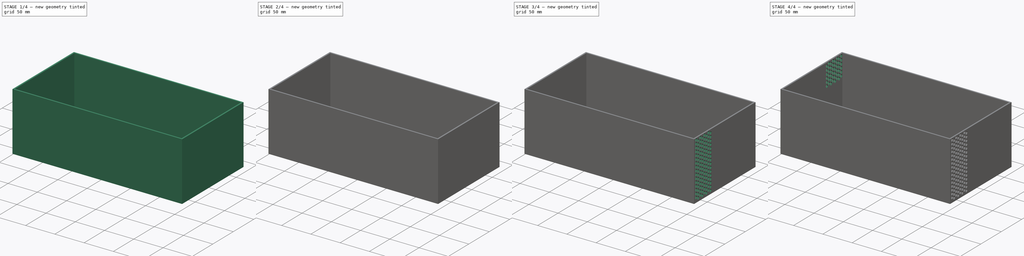
[diagram: build sequence overview — one tinted view per stage of 4, left to right]
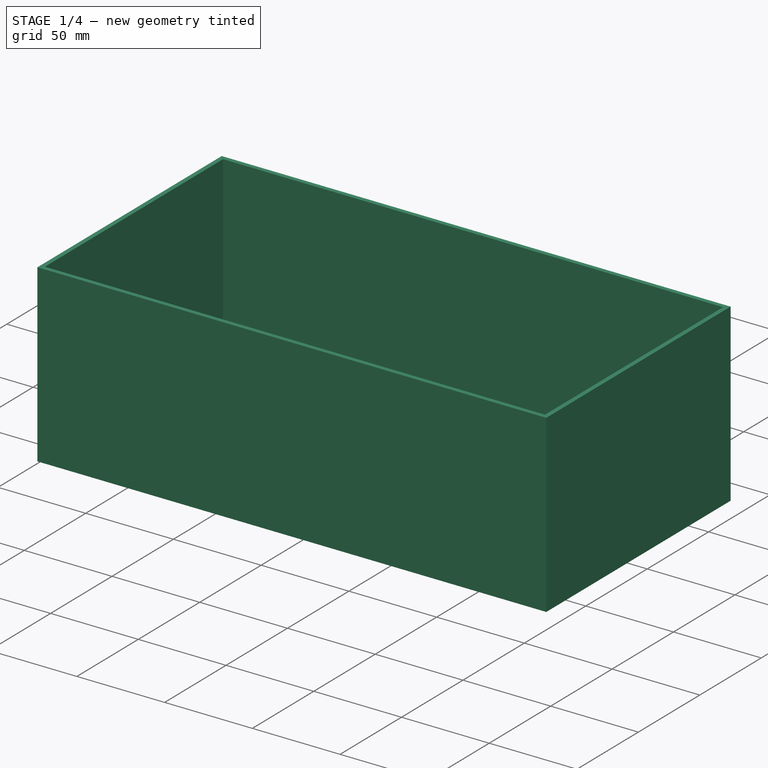
[diagram: stage 1 of 4 — iso view after this stage's code; geometry added in this stage tinted green]
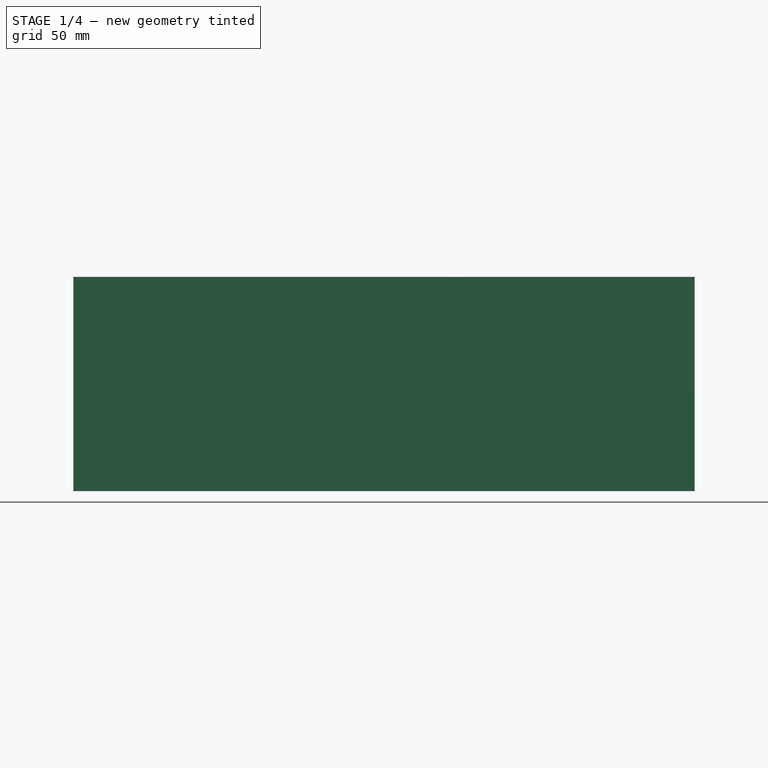
[diagram: stage 1 of 4 — front view after this stage's code; geometry added in this stage tinted green]
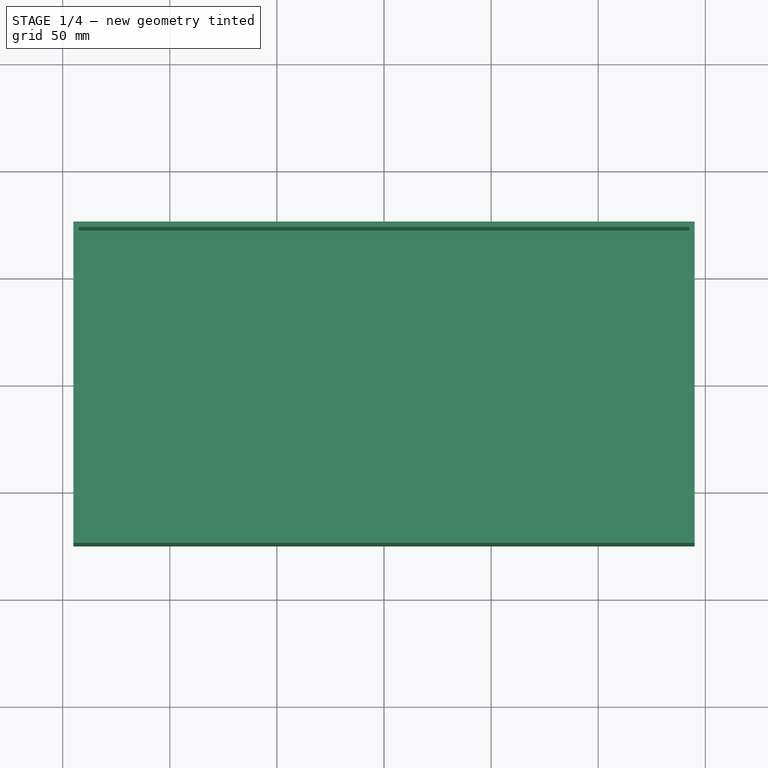
[diagram: stage 1 of 4 — top view after this stage's code; geometry added in this stage tinted green]
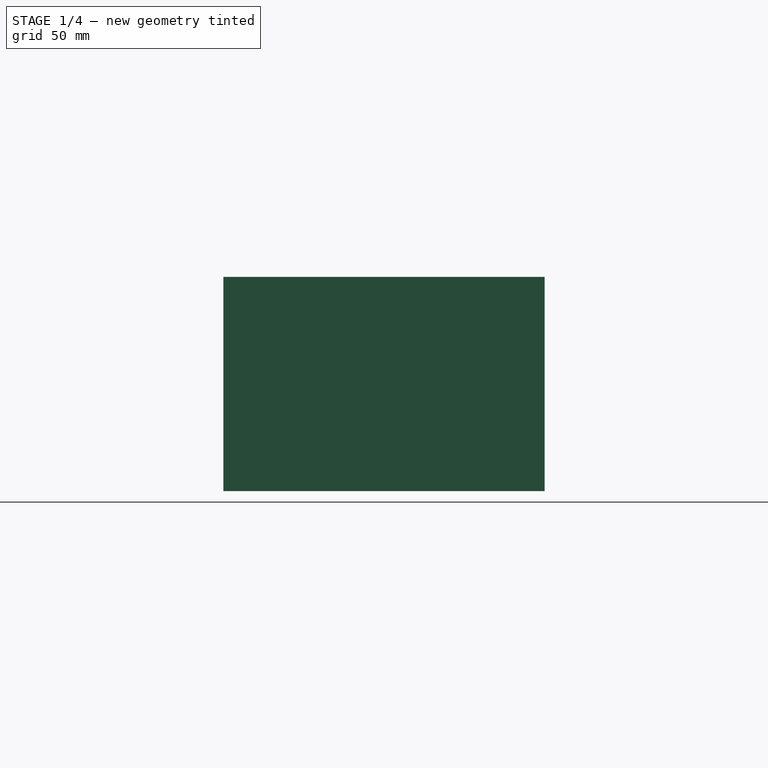
[diagram: stage 1 of 4 — right view after this stage's code; geometry added in this stage tinted green]
FCSTD DOCUMENT  (FreeCAD 0.16R6712 (Git))
Label: base
License: All rights reserved
LicenseURL: http://en.wikipedia.org/wiki/All_rights_reserved
objects: Sketcher::SketchObject×8, Part::Feature×5, PartDesign::Pocket×5, PartDesign::Pad×3, PartDesign::LinearPattern×2
note: 31 computed .brp shape members not serialized (recipe doc carries the construction recipe); baked Part::Feature solids carry a one-line shape summary decoded from their .brp

FEATURE [Sketcher::SketchObject] Sketch
  sketch-geometry (4):
    g0: LineSegment StartX=-145 StartY=75 StartZ=0 EndX=145 EndY=75 EndZ=0
    g1: LineSegment StartX=145 StartY=75 StartZ=0 EndX=145 EndY=-75 EndZ=0
    g2: LineSegment StartX=145 StartY=-75 StartZ=0 EndX=-145 EndY=-75 EndZ=0
    g3: LineSegment StartX=-145 StartY=-75 StartZ=0 EndX=-145 EndY=75 EndZ=0
  constraints (13):
    c: Coincident(g0,g1)
    c: Coincident(g1,g2)
    c: Coincident(g2,g3)
    c: Coincident(g3,g0)
    c: Horizontal(g2)
    c: Vertical(g1)
    c: Vertical(g3)
    c: Equal(g0,g2)
    c: Equal(g3,g1)
    c: DistanceY(g3,g3) = 150
    c: DistanceX(g0,g0) = 290
    c: Symmetric(g0,g0,g-2)
    c: Symmetric(g0,g2,g-1)
FEATURE [PartDesign::Pad] Pad
  Length = 2.5
  Length2 = 100
  Sketch = -> Sketch
  Type = 0
FEATURE [Sketcher::SketchObject] Sketch001
  Placement = pos=(0,0,2.5) rot=(0,0,1;0rad)
  Support = -> Pad [Face6]
  sketch-geometry (8):
    g0: LineSegment StartX=-145 StartY=75 StartZ=0 EndX=145 EndY=75 EndZ=0
    g1: LineSegment StartX=145 StartY=75 StartZ=0 EndX=145 EndY=-75 EndZ=0
    g2: LineSegment StartX=145 StartY=-75 StartZ=0 EndX=-145 EndY=-75 EndZ=0
    g3: LineSegment StartX=-145 StartY=-75 StartZ=0 EndX=-145 EndY=75 EndZ=0
    g4: LineSegment StartX=-142.5 StartY=72.5 StartZ=0 EndX=142.5 EndY=72.5 EndZ=0
    g5: LineSegment StartX=142.5 StartY=72.5 StartZ=0 EndX=142.5 EndY=-72.5 EndZ=0
    g6: LineSegment StartX=142.5 StartY=-72.5 StartZ=0 EndX=-142.5 EndY=-72.5 EndZ=0
    g7: LineSegment StartX=-142.5 StartY=-72.5 StartZ=0 EndX=-142.5 EndY=72.5 EndZ=0
  constraints (26):
    c: Coincident(g0,g1)
    c: Coincident(g1,g2)
    c: Coincident(g2,g3)
    c: Coincident(g3,g0)
    c: Horizontal(g2)
    c: Vertical(g1)
    c: Vertical(g3)
    c: Equal(g3,g1)
    c: Symmetric(g0,g0,g-2)
    c: Symmetric(g0,g2,g-1)
    c: DistanceX(g0,g0) = 290
    c: DistanceY(g1,g1) = 150
    c: Coincident(g4,g5)
    c: Coincident(g5,g6)
    c: Coincident(g6,g7)
    c: Coincident(g7,g4)
    c: Horizontal(g6)
    c: Vertical(g5)
    c: Vertical(g7)
    c: Equal(g4,g6)
    c: Equal(g7,g5)
    c: DistanceX(g4,g4) = 285
    c: Symmetric(g4,g4,g-2)
    c: Equal(g7,g5)
    c: DistanceY(g7,g7) = 145
    c: Symmetric(g4,g6,g-1)
FEATURE [PartDesign::Pad] Pad001
  Length = 97.5
  Length2 = 100
  Sketch = -> Sketch001
  Type = 0
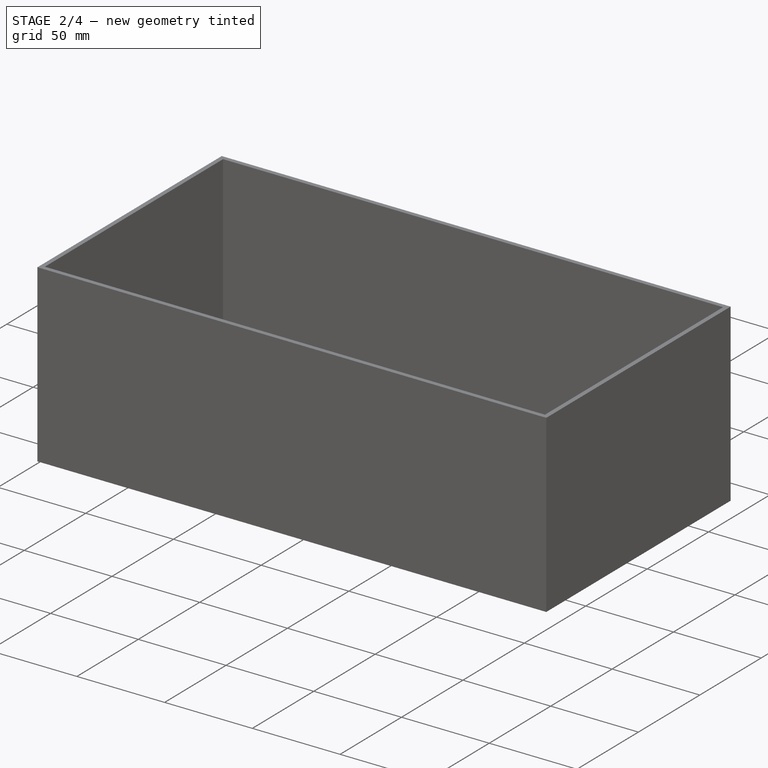
[diagram: stage 2 of 4 — iso view after this stage's code; geometry added in this stage tinted green]
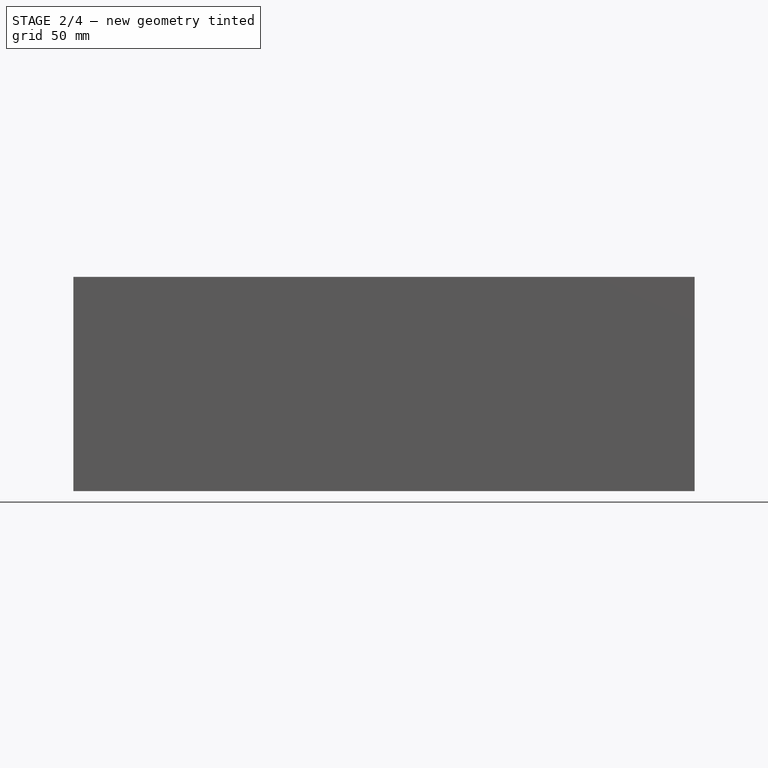
[diagram: stage 2 of 4 — front view after this stage's code; geometry added in this stage tinted green]
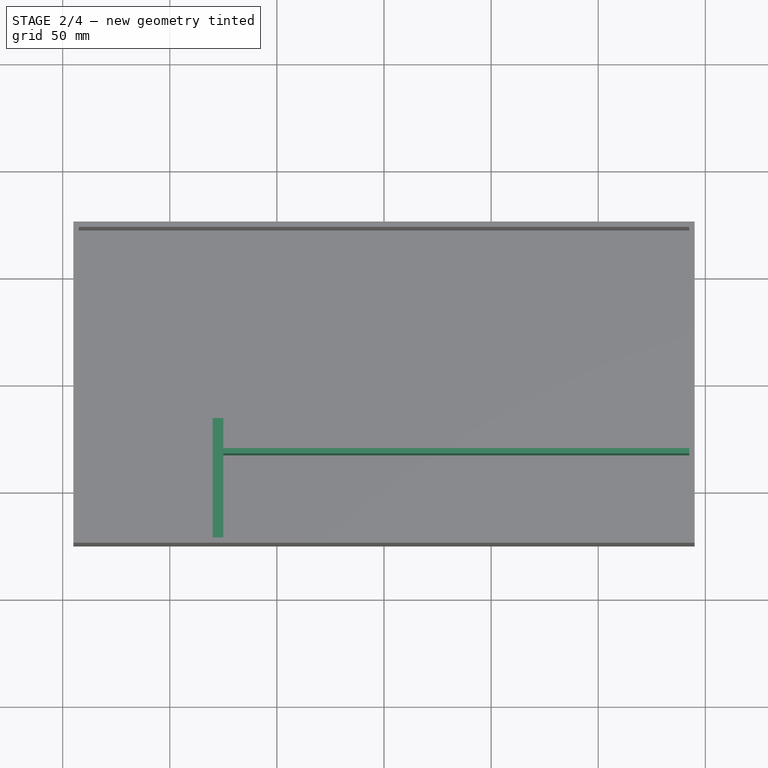
[diagram: stage 2 of 4 — top view after this stage's code; geometry added in this stage tinted green]
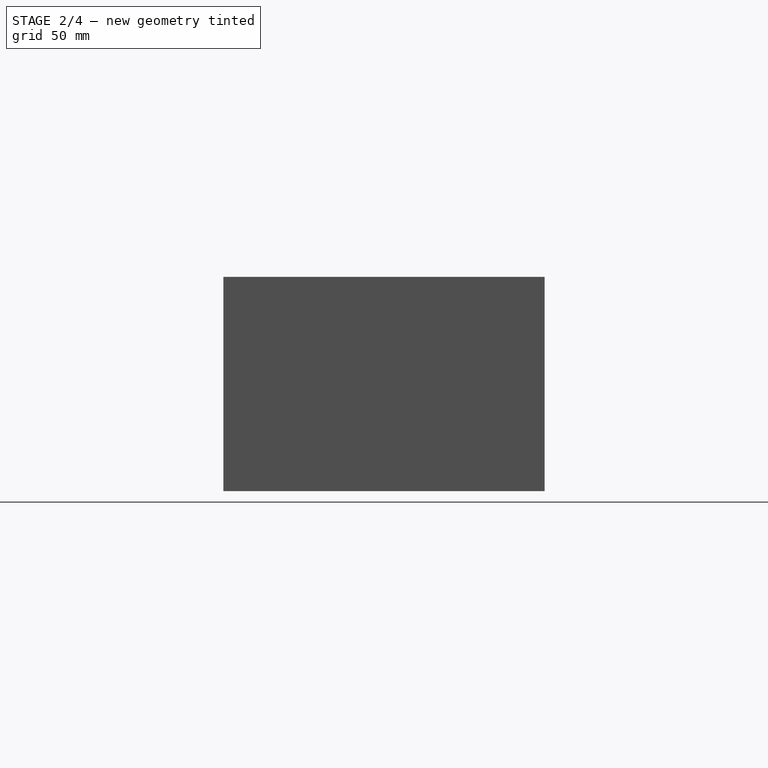
[diagram: stage 2 of 4 — right view after this stage's code; geometry added in this stage tinted green]
FEATURE [Sketcher::SketchObject] Sketch002
  Placement = pos=(0,0,2.5) rot=(0,0,1;0rad)
  Support = -> Pad001 [Face15]
  sketch-geometry (8):
    g0: LineSegment StartX=-75 StartY=-30 StartZ=0 EndX=142.5 EndY=-30 EndZ=0
    g1: LineSegment StartX=142.5 StartY=-30 StartZ=0 EndX=142.5 EndY=-32.5 EndZ=0
    g2: LineSegment StartX=142.5 StartY=-32.5 StartZ=0 EndX=-75 EndY=-32.5 EndZ=0
    g3: LineSegment StartX=-75 StartY=-32.5 StartZ=0 EndX=-75 EndY=-72.5 EndZ=0
    g4: LineSegment StartX=-75 StartY=-72.5 StartZ=0 EndX=-80 EndY=-72.5 EndZ=0
    g5: LineSegment StartX=-80 StartY=-16 StartZ=0 EndX=-75 EndY=-16 EndZ=0
    g6: LineSegment StartX=-75 StartY=-16 StartZ=0 EndX=-75 EndY=-30 EndZ=0
    g7: LineSegment StartX=-80 StartY=-16 StartZ=0 EndX=-80 EndY=-72.5 EndZ=0
  constraints (24):
    c: Horizontal(g0)
    c: Coincident(g1,g0)
    c: Coincident(g2,g1)
    c: Horizontal(g2)
    c: Coincident(g3,g2)
    c: Vertical(g3)
    c: Coincident(g4,g3)
    c: Vertical(g1)
    c: Horizontal(g4)
    c: DistanceY(g3,g3) = 40
    c: DistanceY(g1,g1) = 2.5
    c: DistanceX(g4,g4) = 5
    c: Horizontal(g5)
    c: Vertical(g6)
    c: Coincident(g0,g6)
    c: DistanceX(g2,g1) = 217.5
    c: Equal(g5,g4)
    c: DistanceX(g5,g-1) = 80
    c: Coincident(g7,g5)
    c: Coincident(g7,g4)
    c: Vertical(g7)
    c: Coincident(g6,g5)
    c: DistanceY(g5,g-1) = 16
    c: DistanceY(g0,g-1) = 30
FEATURE [PartDesign::Pad] Pad002
  Length = 55
  Length2 = 100
  Sketch = -> Sketch002
  Type = 0
FEATURE [Part::Feature] Part__Feature  label="opc"
  Placement = pos=(-127,-45,38) rot=(0.57735,0.57735,0.57735;2.0944rad)
  shape: bbox 60.5 x 75 x 63.5 mm, 57 faces (baked)
FEATURE [Sketcher::SketchObject] Sketch003
  Placement = pos=(-75,0,0) rot=(0.57735,0.57735,0.57735;2.0944rad)
  Support = -> Pad002 [Face20]
  sketch-geometry (1):
    g0: Circle CenterX=-45 CenterY=38 CenterZ=0 NormalX=0 NormalY=0 NormalZ=1 Radius=4.2
  constraints (3):
    c: Radius(g0) = 4.2
    c: DistanceX(g0,g-1) = 45
    c: DistanceY(g-1,g0) = 38
FEATURE [PartDesign::Pocket] Pocket
  Length = 5
  Sketch = -> Sketch003
  Type = 0
FEATURE [Sketcher::SketchObject] Sketch004
  Placement = pos=(-75,0,0) rot=(0.57735,0.57735,0.57735;2.0944rad)
  Support = -> Pocket [Face20]
  sketch-geometry (8):
    g0: Circle CenterX=-67 CenterY=52 CenterZ=0 NormalX=0 NormalY=0 NormalZ=1 Radius=1.5
    g1: Circle CenterX=-23 CenterY=52 CenterZ=0 NormalX=0 NormalY=0 NormalZ=1 Radius=1.5
    g2: Circle CenterX=-23 CenterY=27 CenterZ=0 NormalX=0 NormalY=0 NormalZ=1 Radius=1.5
    g3: Circle CenterX=-67 CenterY=27 CenterZ=0 NormalX=0 NormalY=0 NormalZ=1 Radius=1.5
    g4: LineSegment [constr] StartX=-67 StartY=52 StartZ=0 EndX=-23 EndY=52 EndZ=0
    g5: LineSegment [constr] StartX=-23 StartY=52 StartZ=0 EndX=-23 EndY=27 EndZ=0
    g6: LineSegment [constr] StartX=-67 StartY=27 StartZ=0 EndX=-67 EndY=52 EndZ=0
    g7: LineSegment [constr] StartX=-67 StartY=27 StartZ=0 EndX=-23 EndY=27 EndZ=0
  constraints (22):
    c: Equal(g0,g3)
    c: Equal(g3,g1)
    c: Equal(g1,g2)
    c: Coincident(g4,g0)
    c: Coincident(g4,g1)
    c: Horizontal(g4)
    c: Coincident(g5,g1)
    c: Coincident(g5,g2)
    c: Vertical(g5)
    c: Coincident(g6,g3)
    c: Coincident(g6,g0)
    c: Vertical(g6)
    c: Coincident(g7,g3)
    c: Horizontal(g7)
    c: Coincident(g7,g2)
    c: Equal(g6,g5)
    c: Equal(g7,g4)
    c: DistanceX(g7,g7) = 44
    c: DistanceY(g6,g6) = 25
    c: Radius(g0) = 1.5
    c: DistanceY(g-1,g2) = 27
    c: DistanceX(g2,g-1) = 23
FEATURE [PartDesign::Pocket] Pocket001
  Length = 5
  Sketch = -> Sketch004
  Type = 0
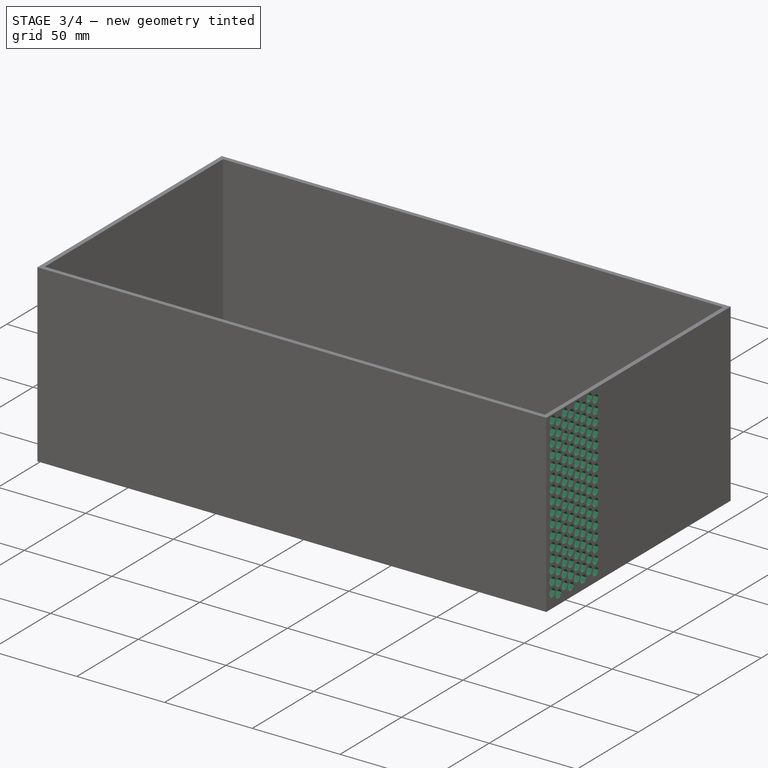
[diagram: stage 3 of 4 — iso view after this stage's code; geometry added in this stage tinted green]
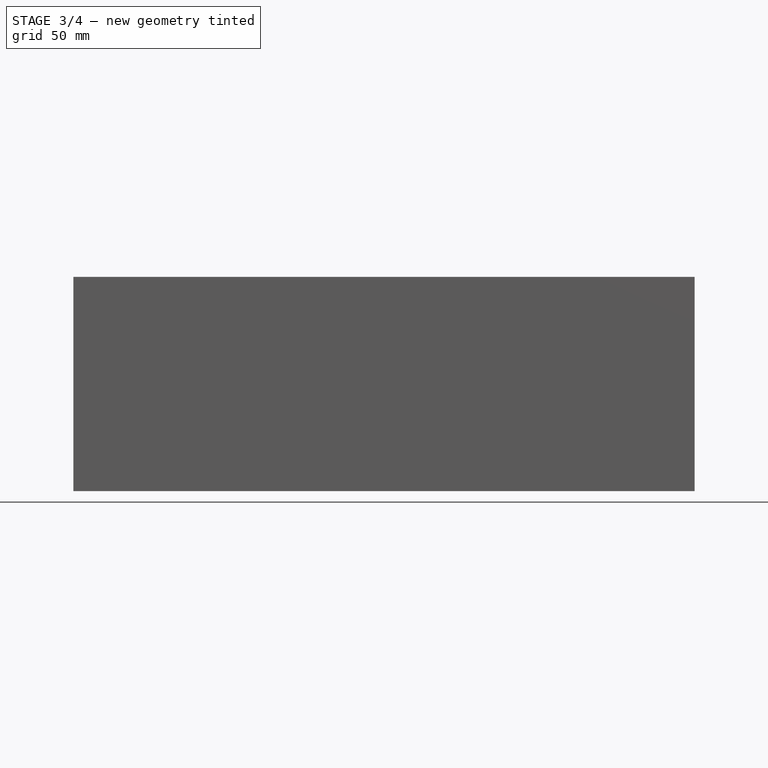
[diagram: stage 3 of 4 — front view after this stage's code; geometry added in this stage tinted green]
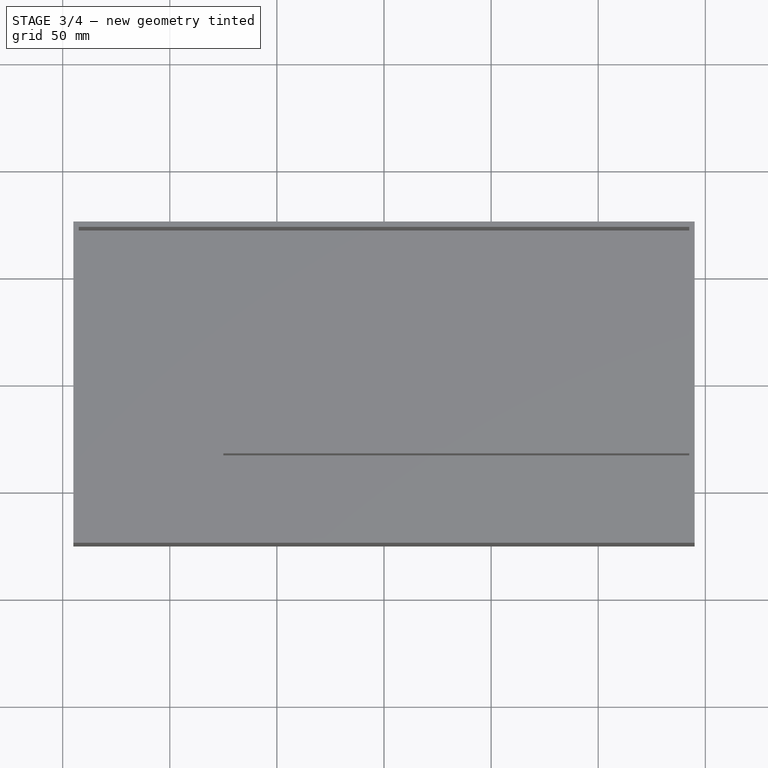
[diagram: stage 3 of 4 — top view after this stage's code; geometry added in this stage tinted green]
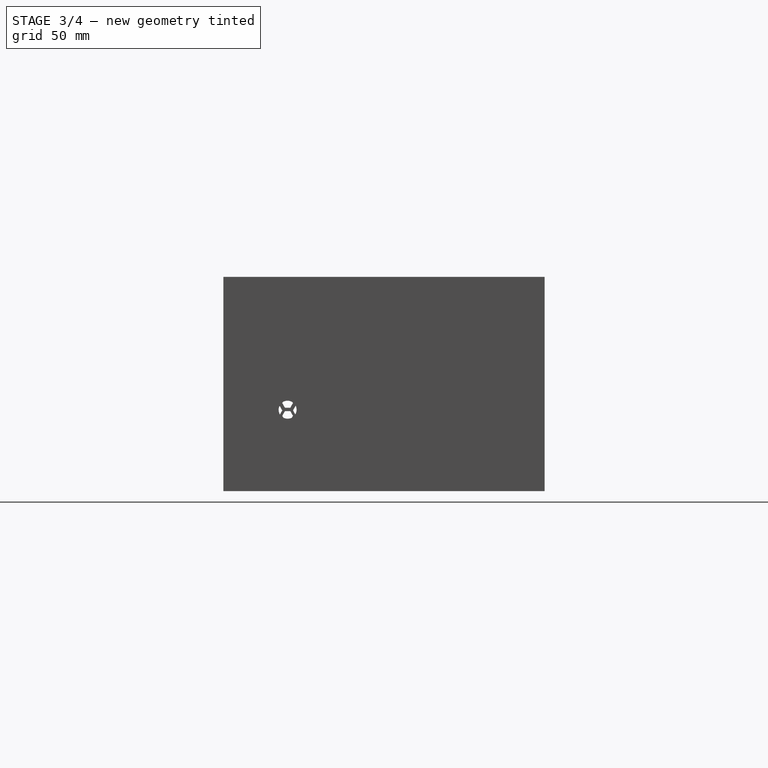
[diagram: stage 3 of 4 — right view after this stage's code; geometry added in this stage tinted green]
FEATURE [Sketcher::SketchObject] Sketch005
  Placement = pos=(-145,0,0) rot=(0.57735,-0.57735,-0.57735;2.0944rad)
  Support = -> Pocket001 [Face9]
  sketch-geometry (12):
    g0: LineSegment StartX=26 StartY=57 StartZ=0 EndX=64 EndY=57 EndZ=0
    g1: LineSegment StartX=64 StartY=57 StartZ=0 EndX=64 EndY=19 EndZ=0
    g2: LineSegment StartX=64 StartY=19 StartZ=0 EndX=26 EndY=19 EndZ=0
    g3: LineSegment StartX=26 StartY=19 StartZ=0 EndX=26 EndY=57 EndZ=0
    g4: LineSegment [constr] StartX=30 StartY=53 StartZ=0 EndX=60 EndY=53 EndZ=0
    g5: LineSegment [constr] StartX=60 StartY=53 StartZ=0 EndX=60 EndY=23 EndZ=0
    g6: LineSegment [constr] StartX=60 StartY=23 StartZ=0 EndX=30 EndY=23 EndZ=0
    g7: LineSegment [constr] StartX=30 StartY=23 StartZ=0 EndX=30 EndY=53 EndZ=0
    g8: LineSegment [constr] StartX=26 StartY=57 StartZ=0 EndX=30 EndY=53 EndZ=0
    g9: LineSegment [constr] StartX=60 StartY=53 StartZ=0 EndX=64 EndY=57 EndZ=0
    g10: LineSegment [constr] StartX=60 StartY=23 StartZ=0 EndX=64 EndY=19 EndZ=0
    g11: LineSegment [constr] StartX=26 StartY=19 StartZ=0 EndX=30 EndY=23 EndZ=0
  constraints (35):
    c: Coincident(g0,g1)
    c: Coincident(g1,g2)
    c: Coincident(g2,g3)
    c: Coincident(g3,g0)
    c: Horizontal(g0)
    c: Horizontal(g2)
    c: Vertical(g1)
    c: Equal(g0,g3)
    c: Equal(g3,g2)
    c: Equal(g2,g1)
    c: DistanceX(g0,g0) = 38
    c: DistanceY(g-1,g2) = 19
    c: DistanceX(g-1,g2) = 26
    c: Coincident(g4,g5)
    c: Coincident(g5,g6)
    c: Coincident(g6,g7)
    c: Coincident(g7,g4)
    c: Horizontal(g4)
    c: Horizontal(g6)
    c: Vertical(g5)
    c: Equal(g4,g7)
    c: Equal(g7,g6)
    c: Equal(g6,g5)
    c: Coincident(g8,g0)
    c: Coincident(g8,g4)
    c: Coincident(g9,g4)
    c: Coincident(g9,g0)
    c: Coincident(g10,g5)
    c: Coincident(g10,g1)
    c: Coincident(g11,g2)
    c: Coincident(g11,g6)
    c: Equal(g9,g8)
    c: Equal(g8,g11)
    c: Equal(g11,g10)
    c: DistanceX(g4,g4) = 30
FEATURE [PartDesign::Pocket] Pocket002
  Length = 2.5
  Sketch = -> Sketch005
  Type = 0
FEATURE [Part::Feature] Part__Feature001  label="piso_intermedio"
  Placement = pos=(0,0,57.5) rot=(0,0,1;0rad)
  shape: bbox 285.8 x 145 x 73.9 mm, 1124 faces (baked)
FEATURE [Sketcher::SketchObject] Sketch006
  Placement = pos=(145,0,0) rot=(0.57735,0.57735,0.57735;2.0944rad)
  Support = -> Pocket002 [Face7]
  sketch-geometry (83):
    g0: LineSegment [constr] StartX=-72.5 StartY=99.5 StartZ=0 EndX=-32.5 EndY=99.5 EndZ=0
    g1: LineSegment [constr] StartX=-32.5 StartY=99.5 StartZ=0 EndX=-32.5 EndY=2.5 EndZ=0
    g2: LineSegment [constr] StartX=-32.5 StartY=2.5 StartZ=0 EndX=-72.5 EndY=2.5 EndZ=0
    g3: LineSegment [constr] StartX=-72.5 StartY=2.5 StartZ=0 EndX=-72.5 EndY=99.5 EndZ=0
    g4: LineSegment [constr] StartX=-70 StartY=2.5 StartZ=0 EndX=-70 EndY=99.5 EndZ=0
    g5: LineSegment [constr] StartX=-67.5 StartY=99.5 StartZ=0 EndX=-67.5 EndY=2.5 EndZ=0
    g6: LineSegment [constr] StartX=-65 StartY=2.5 StartZ=0 EndX=-65 EndY=99.5 EndZ=0
    g7: LineSegment [constr] StartX=-62.5 StartY=99.5 StartZ=0 EndX=-62.5 EndY=2.5 EndZ=0
    g8: LineSegment StartX=-67.5 StartY=97 StartZ=0 EndX=-68.75 EndY=99.1651 EndZ=0
    g9: LineSegment StartX=-68.75 StartY=99.1651 StartZ=0 EndX=-71.25 EndY=99.1651 EndZ=0
    g10: LineSegment StartX=-71.25 StartY=99.1651 StartZ=0 EndX=-72.5 EndY=97 EndZ=0
    g11: LineSegment StartX=-72.5 StartY=97 StartZ=0 EndX=-71.25 EndY=94.8349 EndZ=0
    g12: LineSegment StartX=-71.25 StartY=94.8349 StartZ=0 EndX=-68.75 EndY=94.8349 EndZ=0
    g13: LineSegment StartX=-68.75 StartY=94.8349 StartZ=0 EndX=-67.5 EndY=97 EndZ=0
    g14: Circle [constr] CenterX=-70 CenterY=97 CenterZ=0 NormalX=0 NormalY=0 NormalZ=1 Radius=2.5
    g15: LineSegment [constr] StartX=-72.5 StartY=97 StartZ=0 EndX=-67.5 EndY=97 EndZ=0
    g16: LineSegment StartX=-63.75 StartY=92.3349 StartZ=0 EndX=-62.5 EndY=94.5 EndZ=0
    g17: LineSegment StartX=-62.5 StartY=94.5 StartZ=0 EndX=-63.75 EndY=96.6651 EndZ=0
    g18: LineSegment StartX=-63.75 StartY=96.6651 StartZ=0 EndX=-66.25 EndY=96.6651 EndZ=0
    g19: LineSegment StartX=-66.25 StartY=96.6651 StartZ=0 EndX=-67.5 EndY=94.5 EndZ=0
    g20: LineSegment StartX=-67.5 StartY=94.5 StartZ=0 EndX=-66.25 EndY=92.3349 EndZ=0
    g21: LineSegment StartX=-66.25 StartY=92.3349 StartZ=0 EndX=-63.75 EndY=92.3349 EndZ=0
    g22: Circle [constr] CenterX=-65 CenterY=94.5 CenterZ=0 NormalX=0 NormalY=0 NormalZ=1 Radius=2.5
    g23: LineSegment [constr] StartX=-67.5 StartY=94.5 StartZ=0 EndX=-62.5 EndY=94.5 EndZ=0
    g24: LineSegment [constr] StartX=-60 StartY=99.5 StartZ=0 EndX=-60 EndY=2.5 EndZ=0
    g25: LineSegment [constr] StartX=-57.5 StartY=2.5 StartZ=0 EndX=-57.5 EndY=99.5 EndZ=0
    g26: LineSegment [constr] StartX=-55 StartY=99.5 StartZ=0 EndX=-55 EndY=2.5 EndZ=0
    g27: LineSegment [constr] StartX=-52.5 StartY=2.74768 StartZ=0 EndX=-52.5 EndY=99.5 EndZ=0
    g28: LineSegment [constr] StartX=-45 StartY=99.5 StartZ=0 EndX=-45 EndY=2.5 EndZ=0
    g29: LineSegment [constr] StartX=-42.5 StartY=2.5 StartZ=0 EndX=-42.5 EndY=99.5 EndZ=0
    g30: LineSegment [constr] StartX=-35 StartY=99.5 StartZ=0 EndX=-35 EndY=2.5 EndZ=0
    g31: LineSegment StartX=-57.5 StartY=97 StartZ=0 EndX=-58.75 EndY=99.1651 EndZ=0
    g32: LineSegment StartX=-58.75 StartY=99.1651 StartZ=0 EndX=-61.25 EndY=99.1651 EndZ=0
    g33: LineSegment StartX=-61.25 StartY=99.1651 StartZ=0 EndX=-62.5 EndY=97 EndZ=0
    g34: LineSegment StartX=-62.5 StartY=97 StartZ=0 EndX=-61.25 EndY=94.8349 EndZ=0
    g35: LineSegment StartX=-61.25 StartY=94.8349 StartZ=0 EndX=-58.75 EndY=94.8349 EndZ=0
    g36: LineSegment StartX=-58.75 StartY=94.8349 StartZ=0 EndX=-57.5 EndY=97 EndZ=0
    g37: Circle [constr] CenterX=-60 CenterY=97 CenterZ=0 NormalX=0 NormalY=0 NormalZ=1 Radius=2.5
    g38: LineSegment [constr] StartX=-62.5 StartY=97 StartZ=0 EndX=-57.5 EndY=97 EndZ=0
    g39: LineSegment StartX=-52.5 StartY=94.5 StartZ=0 EndX=-53.75 EndY=96.6651 EndZ=0
    g40: LineSegment StartX=-53.75 StartY=96.6651 StartZ=0 EndX=-56.25 EndY=96.6651 EndZ=0
    g41: LineSegment StartX=-56.25 StartY=96.6651 StartZ=0 EndX=-57.5 EndY=94.5 EndZ=0
    g42: LineSegment StartX=-57.5 StartY=94.5 StartZ=0 EndX=-56.25 EndY=92.3349 EndZ=0
    g43: LineSegment StartX=-56.25 StartY=92.3349 StartZ=0 EndX=-53.75 EndY=92.3349 EndZ=0
    g44: LineSegment StartX=-53.75 StartY=92.3349 StartZ=0 EndX=-52.5 EndY=94.5 EndZ=0
    g45: Circle [constr] CenterX=-55 CenterY=94.5 CenterZ=0 NormalX=0 NormalY=0 NormalZ=1 Radius=2.5
    g46: LineSegment [constr] StartX=-57.5 StartY=94.5 StartZ=0 EndX=-52.5 EndY=94.5 EndZ=0
    g47: LineSegment [constr] StartX=-50 StartY=99.5 StartZ=0 EndX=-50 EndY=2.5 EndZ=0
    g48: LineSegment [constr] StartX=-47.5 StartY=2.5 StartZ=0 EndX=-47.5 EndY=99.5 EndZ=0
    g49: LineSegment StartX=-47.5 StartY=97 StartZ=0 EndX=-48.75 EndY=99.1651 EndZ=0
    g50: LineSegment StartX=-48.75 StartY=99.1651 StartZ=0 EndX=-51.25 EndY=99.1651 EndZ=0
    g51: LineSegment StartX=-51.25 StartY=99.1651 StartZ=0 EndX=-52.5 EndY=97 EndZ=0
    g52: LineSegment StartX=-52.5 StartY=97 StartZ=0 EndX=-51.25 EndY=94.8349 EndZ=0
    g53: LineSegment StartX=-51.25 StartY=94.8349 StartZ=0 EndX=-48.75 EndY=94.8349 EndZ=0
    g54: LineSegment StartX=-48.75 StartY=94.8349 StartZ=0 EndX=-47.5 EndY=97 EndZ=0
    g55: Circle [constr] CenterX=-50 CenterY=97 CenterZ=0 NormalX=0 NormalY=0 NormalZ=1 Radius=2.5
    g56: LineSegment StartX=-42.5 StartY=94.5 StartZ=0 EndX=-43.75 EndY=96.6651 EndZ=0
    g57: LineSegment StartX=-43.75 StartY=96.6651 StartZ=0 EndX=-46.25 EndY=96.6651 EndZ=0
    g58: LineSegment StartX=-46.25 StartY=96.6651 StartZ=0 EndX=-47.5 EndY=94.5 EndZ=0
    g59: LineSegment StartX=-47.5 StartY=94.5 StartZ=0 EndX=-46.25 EndY=92.3349 EndZ=0
    g60: LineSegment StartX=-46.25 StartY=92.3349 StartZ=0 EndX=-43.75 EndY=92.3349 EndZ=0
    g61: LineSegment StartX=-43.75 StartY=92.3349 StartZ=0 EndX=-42.5 EndY=94.5 EndZ=0
    g62: Circle [constr] CenterX=-45 CenterY=94.5 CenterZ=0 NormalX=0 NormalY=0 NormalZ=1 Radius=2.5
    g63: LineSegment [constr] StartX=-52.5 StartY=97 StartZ=0 EndX=-47.5 EndY=97 EndZ=0
    g64: LineSegment [constr] StartX=-47.5 StartY=94.5 StartZ=0 EndX=-42.5 EndY=94.5 EndZ=0
    g65: LineSegment [constr] StartX=-40 StartY=99.5 StartZ=0 EndX=-40 EndY=2.5 EndZ=0
    g66: LineSegment [constr] StartX=-37.5 StartY=2.5 StartZ=0 EndX=-37.5 EndY=99.5 EndZ=0
    g67: LineSegment StartX=-37.5 StartY=97 StartZ=0 EndX=-38.75 EndY=99.1651 EndZ=0
    g68: LineSegment StartX=-38.75 StartY=99.1651 StartZ=0 EndX=-41.25 EndY=99.1651 EndZ=0
    g69: LineSegment StartX=-41.25 StartY=99.1651 StartZ=0 EndX=-42.5 EndY=97 EndZ=0
    g70: LineSegment StartX=-42.5 StartY=97 StartZ=0 EndX=-41.25 EndY=94.8349 EndZ=0
    g71: LineSegment StartX=-41.25 StartY=94.8349 StartZ=0 EndX=-38.75 EndY=94.8349 EndZ=0
    g72: LineSegment StartX=-38.75 StartY=94.8349 StartZ=0 EndX=-37.5 EndY=97 EndZ=0
    g73: Circle [constr] CenterX=-40 CenterY=97 CenterZ=0 NormalX=0 NormalY=0 NormalZ=1 Radius=2.5
    g74: LineSegment StartX=-32.5 StartY=94.5 StartZ=0 EndX=-33.75 EndY=96.6651 EndZ=0
    g75: LineSegment StartX=-33.75 StartY=96.6651 StartZ=0 EndX=-36.25 EndY=96.6651 EndZ=0
    g76: LineSegment StartX=-36.25 StartY=96.6651 StartZ=0 EndX=-37.5 EndY=94.5 EndZ=0
    g77: LineSegment StartX=-37.5 StartY=94.5 StartZ=0 EndX=-36.25 EndY=92.3349 EndZ=0
    g78: LineSegment StartX=-36.25 StartY=92.3349 StartZ=0 EndX=-33.75 EndY=92.3349 EndZ=0
    g79: LineSegment StartX=-33.75 StartY=92.3349 StartZ=0 EndX=-32.5 EndY=94.5 EndZ=0
    g80: Circle [constr] CenterX=-35 CenterY=94.5 CenterZ=0 NormalX=0 NormalY=0 NormalZ=1 Radius=2.5
    g81: LineSegment [constr] StartX=-42.5 StartY=97 StartZ=0 EndX=-37.5 EndY=97 EndZ=0
    g82: LineSegment [constr] StartX=-37.5 StartY=94.5 StartZ=0 EndX=-32.5 EndY=94.5 EndZ=0
  constraints (226):
    c: Coincident(g0,g1)
    c: Coincident(g1,g2)
    c: Coincident(g2,g3)
    c: Coincident(g3,g0)
    c: Horizontal(g0)
    c: Horizontal(g2)
    c: Vertical(g1)
    c: Vertical(g3)
    c: Equal(g2,g0)
    c: Equal(g3,g1)
    c: DistanceX(g0,g0) = 40
    c: DistanceY(g-1,g1) = 2.5
    c: DistanceX(g1,g-1) = 32.5
    c: DistanceY(g3,g3) = 97
    c: PointOnObject(g4,g2)
    c: PointOnObject(g4,g0)
    c: Vertical(g4)
    c: PointOnObject(g5,g0)
    c: PointOnObject(g5,g2)
    c: Vertical(g5)
    c: PointOnObject(g6,g2)
    c: PointOnObject(g6,g0)
    c: Vertical(g6)
    c: PointOnObject(g7,g0)
    c: PointOnObject(g7,g2)
    c: Vertical(g7)
    c: Coincident(g8,g9)
    c: Coincident(g9,g10)
    c: Coincident(g10,g11)
    c: Coincident(g11,g12)
    c: Coincident(g12,g13)
    c: Coincident(g13,g8)
    c: Equal(g8, g9-g13) x5
    c: PointOnObject(g8,g14)
    c: PointOnObject(g9,g14)
    c: PointOnObject(g10,g14)
    c: PointOnObject(g11,g14)
    c: PointOnObject(g12,g14)
    c: PointOnObject(g13,g14)
    c: PointOnObject(g14,g4)
    c: PointOnObject(g13,g5)
    c: PointOnObject(g10,g3)
    c: Coincident(g15,g10)
    c: Coincident(g15,g8)
    c: Horizontal(g15)
    c: DistanceX(g0,g4) = 2.5
    c: Coincident(g16,g17)
    c: Coincident(g17,g18)
    c: Coincident(g18,g19)
    c: Coincident(g19,g20)
    c: Coincident(g20,g21)
    c: Coincident(g21,g16)
    c: Equal(g16, g17-g21) x5
    c: PointOnObject(g16,g22)
    c: PointOnObject(g17,g22)
    c: PointOnObject(g18,g22)
    c: PointOnObject(g19,g22)
    c: PointOnObject(g20,g22)
    c: PointOnObject(g21,g22)
    c: PointOnObject(g19,g5)
    c: PointOnObject(g22,g6)
    c: PointOnObject(g16,g7)
    c: Coincident(g23,g19)
    c: Coincident(g23,g16)
    c: Horizontal(g23)
    c: Equal(g18,g9)
    c: DistanceY(g14,g4) = 2.5
    c: DistanceY(g22,g14) = 2.5
    c: PointOnObject(g24,g0)
    c: Vertical(g24)
    c: PointOnObject(g24,g2)
    c: PointOnObject(g25,g2)
    c: PointOnObject(g25,g0)
    c: Vertical(g25)
    c: PointOnObject(g26,g0)
    c: Vertical(g26)
    c: PointOnObject(g26,g2)
    c: PointOnObject(g27,g0)
    c: Vertical(g27)
    c: PointOnObject(g28,g0)
    c: PointOnObject(g28,g2)
    c: Vertical(g28)
    c: PointOnObject(g29,g2)
    c: PointOnObject(g29,g0)
    c: Vertical(g29)
    c: PointOnObject(g30,g0)
    c: PointOnObject(g30,g2)
    c: Vertical(g30)
    c: Coincident(g31,g32)
    c: Coincident(g32,g33)
    c: Coincident(g33,g34)
    c: Coincident(g34,g35)
    c: Coincident(g35,g36)
    c: Coincident(g36,g31)
    c: Equal(g31, g32-g36) x5
    c: PointOnObject(g31,g37)
    c: PointOnObject(g32,g37)
    c: PointOnObject(g33,g37)
    c: PointOnObject(g34,g37)
    c: PointOnObject(g35,g37)
    c: PointOnObject(g36,g37)
    c: PointOnObject(g37,g24)
    c: PointOnObject(g36,g25)
    c: PointOnObject(g33,g7)
    c: Equal(g9,g32)
    c: Coincident(g38,g33)
    c: Coincident(g38,g31)
    c: Horizontal(g38)
    c: DistanceY(g37,g24) = 2.5
    c: Coincident(g39,g40)
    c: Coincident(g40,g41)
    c: Coincident(g41,g42)
    c: Coincident(g42,g43)
    c: Coincident(g43,g44)
    c: Coincident(g44,g39)
    c: Equal(g39, g40-g44) x5
    c: PointOnObject(g39,g45)
    c: PointOnObject(g40,g45)
    c: PointOnObject(g41,g45)
    c: PointOnObject(g42,g45)
    c: PointOnObject(g43,g45)
    c: PointOnObject(g44,g45)
    c: PointOnObject(g45,g26)
    c: PointOnObject(g41,g25)
    c: Equal(g40,g9)
    c: PointOnObject(g39,g27)
    c: Coincident(g46,g41)
    c: Coincident(g46,g39)
    c: Horizontal(g46)
    c: PointOnObject(g47,g0)
    c: PointOnObject(g47,g2)
    c: Vertical(g47)
    c: PointOnObject(g48,g2)
    c: PointOnObject(g48,g0)
    c: Vertical(g48)
    c: DistanceY(g45,g37) = 2.5
    c: Coincident(g49,g50)
    c: Coincident(g50,g51)
    c: Coincident(g51,g52)
    c: Coincident(g52,g53)
    c: Coincident(g53,g54)
    c: Coincident(g54,g49)
    c: Equal(g49, g50-g54) x5
    c: PointOnObject(g49,g55)
    c: PointOnObject(g50,g55)
    c: PointOnObject(g51,g55)
    c: PointOnObject(g52,g55)
    c: PointOnObject(g53,g55)
    c: PointOnObject(g54,g55)
    c: PointOnObject(g55,g47)
    c: PointOnObject(g51,g27)
    c: Equal(g50,g9)
    c: PointOnObject(g49,g48)
    c: Coincident(g56,g57)
    c: Coincident(g57,g58)
    c: Coincident(g58,g59)
    c: Coincident(g59,g60)
    c: Coincident(g60,g61)
    c: Coincident(g61,g56)
    c: Equal(g56, g57-g61) x5
    c: PointOnObject(g56,g62)
    c: PointOnObject(g57,g62)
    c: PointOnObject(g58,g62)
    c: PointOnObject(g59,g62)
    c: PointOnObject(g60,g62)
    c: PointOnObject(g61,g62)
    c: PointOnObject(g62,g28)
    c: Equal(g57,g9)
    c: PointOnObject(g58,g48)
    c: PointOnObject(g56,g29)
    c: Coincident(g63,g51)
    c: Coincident(g63,g49)
    c: Horizontal(g63)
    c: Coincident(g64,g58)
    c: Horizontal(g64)
    c: Coincident(g64,g56)
    c: DistanceY(g55,g47) = 2.5
    c: DistanceY(g62,g55) = 2.5
    c: PointOnObject(g65,g0)
    c: PointOnObject(g65,g2)
    c: Vertical(g65)
    c: PointOnObject(g66,g2)
    c: PointOnObject(g66,g0)
    c: Vertical(g66)
    c: Coincident(g67,g68)
    c: Coincident(g68,g69)
    c: Coincident(g69,g70)
    c: Coincident(g70,g71)
    c: Coincident(g71,g72)
    c: Coincident(g72,g67)
    c: Equal(g67, g68-g72) x5
    c: PointOnObject(g67,g73)
    c: PointOnObject(g68,g73)
    c: PointOnObject(g69,g73)
    c: PointOnObject(g70,g73)
    c: PointOnObject(g71,g73)
    c: PointOnObject(g72,g73)
    c: PointOnObject(g73,g65)
    c: PointOnObject(g72,g66)
    c: Coincident(g74,g75)
    c: Coincident(g75,g76)
    c: Coincident(g76,g77)
    c: Coincident(g77,g78)
    c: Coincident(g78,g79)
    c: Coincident(g79,g74)
    c: Equal(g74, g75-g79) x5
    c: PointOnObject(g74,g80)
    c: PointOnObject(g75,g80)
    c: PointOnObject(g76,g80)
    c: PointOnObject(g77,g80)
    c: PointOnObject(g78,g80)
    c: PointOnObject(g79,g80)
    c: PointOnObject(g80,g30)
    c: PointOnObject(g79,g1)
    c: Equal(g75,g68)
    c: Equal(g68,g9)
    c: Coincident(g81,g69)
    c: Coincident(g81,g67)
    c: Horizontal(g81)
    c: PointOnObject(g69,g29)
    c: PointOnObject(g76,g66)
    c: Coincident(g82,g76)
    c: Coincident(g82,g74)
    c: Horizontal(g82)
    c: DistanceY(g73,g65) = 2.5
    c: DistanceY(g80,g73) = 2.5
FEATURE [PartDesign::Pocket] Pocket003
  Length = 2.5
  Sketch = -> Sketch006
  Type = 0
FEATURE [PartDesign::LinearPattern] LinearPattern
  Direction = -> Sketch006 [V_Axis]
  Length = 89
  Occurrences = 16
  Originals = -> [Pocket003]
  Reversed = true
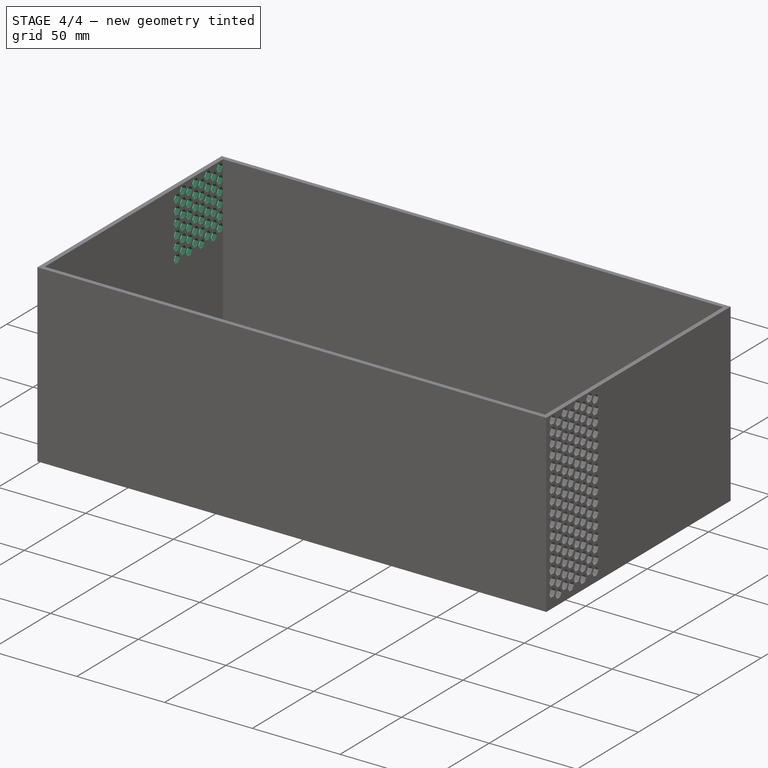
[diagram: stage 4 of 4 — iso view after this stage's code; geometry added in this stage tinted green]
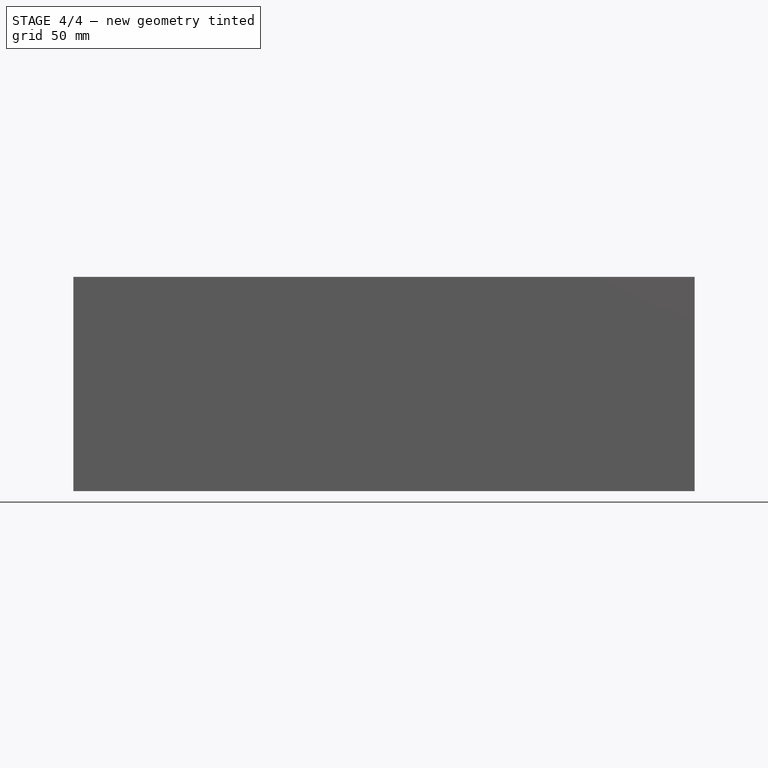
[diagram: stage 4 of 4 — front view after this stage's code; geometry added in this stage tinted green]
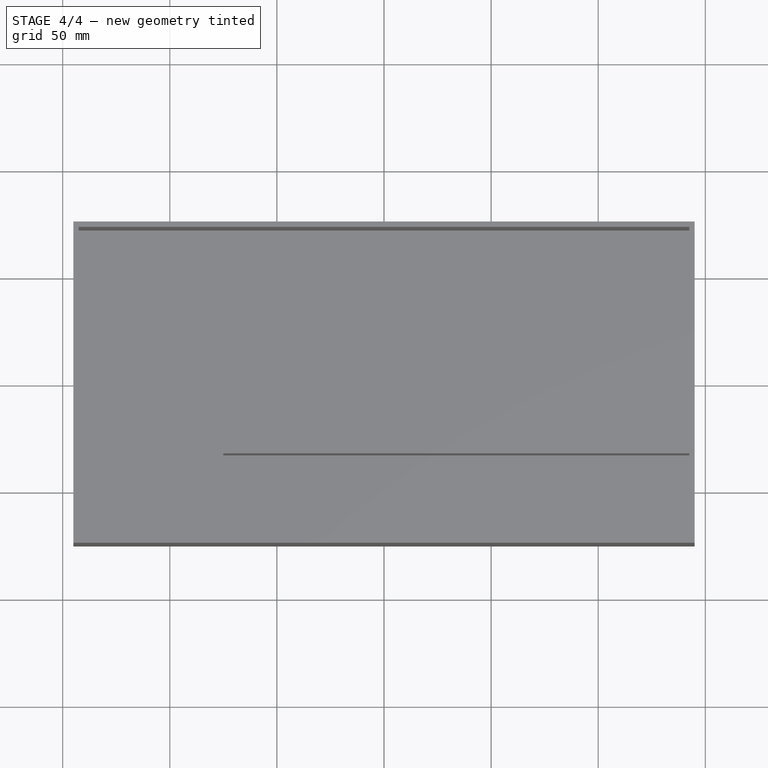
[diagram: stage 4 of 4 — top view after this stage's code; geometry added in this stage tinted green]
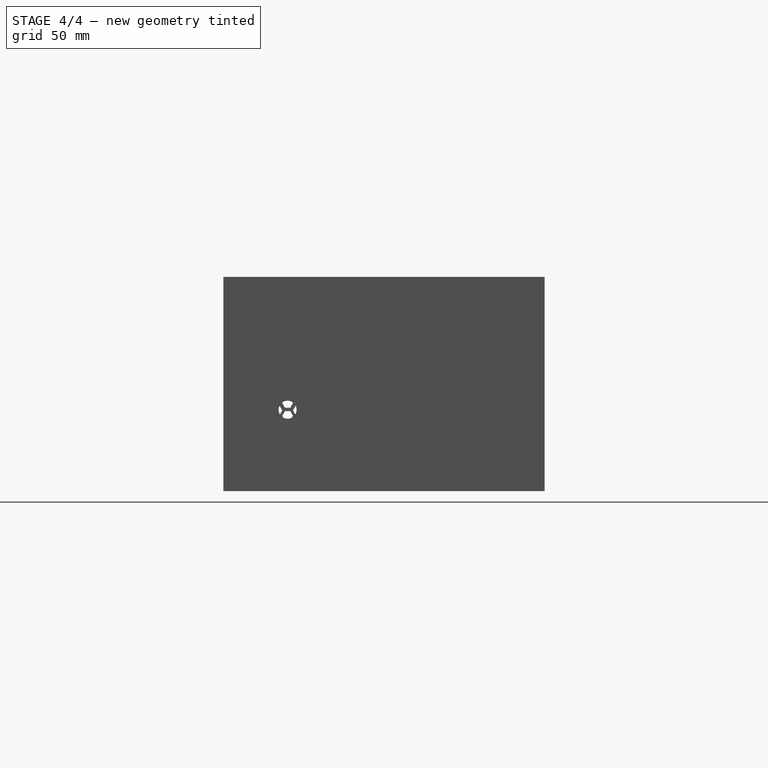
[diagram: stage 4 of 4 — right view after this stage's code; geometry added in this stage tinted green]
FEATURE [Sketcher::SketchObject] Sketch007
  Placement = pos=(-145,0,0) rot=(0.57735,-0.57735,-0.57735;2.0944rad)
  Support = -> LinearPattern [Face9]
  sketch-geometry (76):
    g0: LineSegment [constr] StartX=-72.5 StartY=99 StartZ=0 EndX=-32.5 EndY=99 EndZ=0
    g1: LineSegment [constr] StartX=-32.5 StartY=99 StartZ=0 EndX=-32.5 EndY=86 EndZ=0
    g2: LineSegment [constr] StartX=-32.5 StartY=86 StartZ=0 EndX=-72.5 EndY=86 EndZ=0
    g3: LineSegment [constr] StartX=-72.5 StartY=86 StartZ=0 EndX=-72.5 EndY=99 EndZ=0
    g4: LineSegment [constr] StartX=-67.5 StartY=99 StartZ=0 EndX=-67.5 EndY=86 EndZ=0
    g5: LineSegment [constr] StartX=-62.5 StartY=99 StartZ=0 EndX=-62.5 EndY=86 EndZ=0
    g6: LineSegment [constr] StartX=-50 StartY=99 StartZ=0 EndX=-50 EndY=86 EndZ=0
    g7: LineSegment [constr] StartX=-42.5 StartY=99 StartZ=0 EndX=-42.5 EndY=86 EndZ=0
    g8: LineSegment [constr] StartX=-37.5 StartY=99 StartZ=0 EndX=-37.5 EndY=86 EndZ=0
    g9: LineSegment [constr] StartX=-65 StartY=99 StartZ=0 EndX=-65 EndY=86 EndZ=0
    g10: LineSegment [constr] StartX=-52.5 StartY=99 StartZ=0 EndX=-52.5 EndY=86 EndZ=0
    g11: LineSegment [constr] StartX=-47.5 StartY=99 StartZ=0 EndX=-47.5 EndY=86 EndZ=0
    g12: LineSegment [constr] StartX=-70 StartY=99 StartZ=0 EndX=-70 EndY=86 EndZ=0
    g13: LineSegment StartX=-67.5 StartY=96.5 StartZ=0 EndX=-68.75 EndY=98.6651 EndZ=0
    g14: LineSegment StartX=-68.75 StartY=98.6651 StartZ=0 EndX=-71.25 EndY=98.6651 EndZ=0
    g15: LineSegment StartX=-71.25 StartY=98.6651 StartZ=0 EndX=-72.5 EndY=96.5 EndZ=0
    g16: LineSegment StartX=-72.5 StartY=96.5 StartZ=0 EndX=-71.25 EndY=94.3349 EndZ=0
    g17: LineSegment StartX=-71.25 StartY=94.3349 StartZ=0 EndX=-68.75 EndY=94.3349 EndZ=0
    g18: LineSegment StartX=-68.75 StartY=94.3349 StartZ=0 EndX=-67.5 EndY=96.5 EndZ=0
    g19: Circle [constr] CenterX=-70 CenterY=96.5 CenterZ=0 NormalX=0 NormalY=0 NormalZ=1 Radius=2.5
    g20: LineSegment StartX=-63.75 StartY=91.8349 StartZ=0 EndX=-62.5 EndY=94 EndZ=0
    g21: LineSegment StartX=-62.5 StartY=94 StartZ=0 EndX=-63.75 EndY=96.1651 EndZ=0
    g22: LineSegment StartX=-63.75 StartY=96.1651 StartZ=0 EndX=-66.25 EndY=96.1651 EndZ=0
    g23: LineSegment StartX=-66.25 StartY=96.1651 StartZ=0 EndX=-67.5 EndY=94 EndZ=0
    g24: LineSegment StartX=-67.5 StartY=94 StartZ=0 EndX=-66.25 EndY=91.8349 EndZ=0
    g25: LineSegment StartX=-66.25 StartY=91.8349 StartZ=0 EndX=-63.75 EndY=91.8349 EndZ=0
    g26: Circle [constr] CenterX=-65 CenterY=94 CenterZ=0 NormalX=0 NormalY=0 NormalZ=1 Radius=2.5
    g27: LineSegment [constr] StartX=-60 StartY=99 StartZ=0 EndX=-60 EndY=86 EndZ=0
    g28: LineSegment [constr] StartX=-57.5 StartY=99 StartZ=0 EndX=-57.5 EndY=86 EndZ=0
    g29: LineSegment [constr] StartX=-32.5 StartY=99 StartZ=0 EndX=-32.5 EndY=86 EndZ=0
    g30: LineSegment [constr] StartX=-55 StartY=99 StartZ=0 EndX=-55 EndY=86 EndZ=0
    g31: LineSegment StartX=-57.5 StartY=96.5 StartZ=0 EndX=-58.75 EndY=98.6651 EndZ=0
    g32: LineSegment StartX=-58.75 StartY=98.6651 StartZ=0 EndX=-61.25 EndY=98.6651 EndZ=0
    g33: LineSegment StartX=-61.25 StartY=98.6651 StartZ=0 EndX=-62.5 EndY=96.5 EndZ=0
    g34: LineSegment StartX=-62.5 StartY=96.5 StartZ=0 EndX=-61.25 EndY=94.3349 EndZ=0
    g35: LineSegment StartX=-61.25 StartY=94.3349 StartZ=0 EndX=-58.75 EndY=94.3349 EndZ=0
    g36: LineSegment StartX=-58.75 StartY=94.3349 StartZ=0 EndX=-57.5 EndY=96.5 EndZ=0
    g37: Circle [constr] CenterX=-60 CenterY=96.5 CenterZ=0 NormalX=0 NormalY=0 NormalZ=1 Radius=2.5
    g38: LineSegment StartX=-52.5 StartY=94 StartZ=0 EndX=-53.75 EndY=96.1651 EndZ=0
    g39: LineSegment StartX=-53.75 StartY=96.1651 StartZ=0 EndX=-56.25 EndY=96.1651 EndZ=0
    g40: LineSegment StartX=-56.25 StartY=96.1651 StartZ=0 EndX=-57.5 EndY=94 EndZ=0
    g41: LineSegment StartX=-57.5 StartY=94 StartZ=0 EndX=-56.25 EndY=91.8349 EndZ=0
    g42: LineSegment StartX=-56.25 StartY=91.8349 StartZ=0 EndX=-53.75 EndY=91.8349 EndZ=0
    g43: LineSegment StartX=-53.75 StartY=91.8349 StartZ=0 EndX=-52.5 EndY=94 EndZ=0
    g44: Circle [constr] CenterX=-55 CenterY=94 CenterZ=0 NormalX=0 NormalY=0 NormalZ=1 Radius=2.5
    g45: LineSegment StartX=-47.5 StartY=96.5 StartZ=0 EndX=-48.75 EndY=98.6651 EndZ=0
    g46: LineSegment StartX=-48.75 StartY=98.6651 StartZ=0 EndX=-51.25 EndY=98.6651 EndZ=0
    g47: LineSegment StartX=-51.25 StartY=98.6651 StartZ=0 EndX=-52.5 EndY=96.5 EndZ=0
    g48: LineSegment StartX=-52.5 StartY=96.5 StartZ=0 EndX=-51.25 EndY=94.3349 EndZ=0
    g49: LineSegment StartX=-51.25 StartY=94.3349 StartZ=0 EndX=-48.75 EndY=94.3349 EndZ=0
    g50: LineSegment StartX=-48.75 StartY=94.3349 StartZ=0 EndX=-47.5 EndY=96.5 EndZ=0
    g51: Circle [constr] CenterX=-50 CenterY=96.5 CenterZ=0 NormalX=0 NormalY=0 NormalZ=1 Radius=2.5
    g52: LineSegment [constr] StartX=-45 StartY=99 StartZ=0 EndX=-45 EndY=86 EndZ=0
    g53: LineSegment [constr] StartX=-40 StartY=99 StartZ=0 EndX=-40 EndY=86 EndZ=0
    g54: LineSegment [constr] StartX=-35 StartY=99 StartZ=0 EndX=-35 EndY=86 EndZ=0
    g55: LineSegment StartX=-42.5 StartY=94 StartZ=0 EndX=-43.75 EndY=96.1651 EndZ=0
    g56: LineSegment StartX=-43.75 StartY=96.1651 StartZ=0 EndX=-46.25 EndY=96.1651 EndZ=0
    g57: LineSegment StartX=-46.25 StartY=96.1651 StartZ=0 EndX=-47.5 EndY=94 EndZ=0
    g58: LineSegment StartX=-47.5 StartY=94 StartZ=0 EndX=-46.25 EndY=91.8349 EndZ=0
    g59: LineSegment StartX=-46.25 StartY=91.8349 StartZ=0 EndX=-43.75 EndY=91.8349 EndZ=0
    g60: LineSegment StartX=-43.75 StartY=91.8349 StartZ=0 EndX=-42.5 EndY=94 EndZ=0
    g61: Circle [constr] CenterX=-45 CenterY=94 CenterZ=0 NormalX=0 NormalY=0 NormalZ=1 Radius=2.5
    g62: LineSegment StartX=-37.5 StartY=96.5 StartZ=0 EndX=-38.75 EndY=98.6651 EndZ=0
    g63: LineSegment StartX=-38.75 StartY=98.6651 StartZ=0 EndX=-41.25 EndY=98.6651 EndZ=0
    g64: LineSegment StartX=-41.25 StartY=98.6651 StartZ=0 EndX=-42.5 EndY=96.5 EndZ=0
    g65: LineSegment StartX=-42.5 StartY=96.5 StartZ=0 EndX=-41.25 EndY=94.3349 EndZ=0
    g66: LineSegment StartX=-41.25 StartY=94.3349 StartZ=0 EndX=-38.75 EndY=94.3349 EndZ=0
    g67: LineSegment StartX=-38.75 StartY=94.3349 StartZ=0 EndX=-37.5 EndY=96.5 EndZ=0
    g68: Circle [constr] CenterX=-40 CenterY=96.5 CenterZ=0 NormalX=0 NormalY=0 NormalZ=1 Radius=2.5
    g69: LineSegment StartX=-32.5 StartY=94 StartZ=0 EndX=-33.75 EndY=96.1651 EndZ=0
    g70: LineSegment StartX=-33.75 StartY=96.1651 StartZ=0 EndX=-36.25 EndY=96.1651 EndZ=0
    g71: LineSegment StartX=-36.25 StartY=96.1651 StartZ=0 EndX=-37.5 EndY=94 EndZ=0
    g72: LineSegment StartX=-37.5 StartY=94 StartZ=0 EndX=-36.25 EndY=91.8349 EndZ=0
    g73: LineSegment StartX=-36.25 StartY=91.8349 StartZ=0 EndX=-33.75 EndY=91.8349 EndZ=0
    g74: LineSegment StartX=-33.75 StartY=91.8349 StartZ=0 EndX=-32.5 EndY=94 EndZ=0
    g75: Circle [constr] CenterX=-35 CenterY=94 CenterZ=0 NormalX=0 NormalY=0 NormalZ=1 Radius=2.5
  constraints (214):
    c: Coincident(g0,g1)
    c: Coincident(g1,g2)
    c: Coincident(g2,g3)
    c: Coincident(g3,g0)
    c: Horizontal(g0)
    c: Horizontal(g2)
    c: Vertical(g1)
    c: Vertical(g3)
    c: DistanceX(g2,g2) = 40
    c: Equal(g0,g2)
    c: Equal(g3,g1)
    c: DistanceY(g-1,g1) = 86
    c: DistanceX(g1,g-1) = 32.5
    c: DistanceY(g1,g1) = 13
    c: PointOnObject(g4,g0)
    c: PointOnObject(g4,g2)
    c: Vertical(g4)
    c: PointOnObject(g5,g0)
    c: PointOnObject(g5,g2)
    c: Vertical(g5)
    c: PointOnObject(g6,g0)
    c: PointOnObject(g6,g2)
    c: Vertical(g6)
    c: PointOnObject(g7,g0)
    c: PointOnObject(g7,g2)
    c: Vertical(g7)
    c: PointOnObject(g8,g0)
    c: Vertical(g8)
    c: PointOnObject(g9,g0)
    c: PointOnObject(g9,g2)
    c: Vertical(g9)
    c: PointOnObject(g10,g0)
    c: PointOnObject(g10,g2)
    c: Vertical(g10)
    c: PointOnObject(g11,g0)
    c: PointOnObject(g11,g2)
    c: Vertical(g11)
    c: PointOnObject(g12,g0)
    c: PointOnObject(g12,g2)
    c: Vertical(g12)
    c: Coincident(g13,g14)
    c: Coincident(g14,g15)
    c: Coincident(g15,g16)
    c: Coincident(g16,g17)
    c: Coincident(g17,g18)
    c: Coincident(g18,g13)
    c: Equal(g13, g14-g18) x5
    c: PointOnObject(g13,g19)
    c: PointOnObject(g14,g19)
    c: PointOnObject(g15,g19)
    c: PointOnObject(g16,g19)
    c: PointOnObject(g17,g19)
    c: PointOnObject(g18,g19)
    c: PointOnObject(g19,g12)
    c: PointOnObject(g18,g4)
    c: PointOnObject(g15,g3)
    c: Horizontal(g17)
    c: DistanceX(g0,g12) = 2.5
    c: DistanceY(g15,g0) = 2.5
    c: Coincident(g20,g21)
    c: Coincident(g21,g22)
    c: Coincident(g22,g23)
    c: Coincident(g23,g24)
    c: Coincident(g24,g25)
    c: Coincident(g25,g20)
    c: Equal(g20, g21-g25) x5
    c: PointOnObject(g20,g26)
    c: PointOnObject(g21,g26)
    c: PointOnObject(g22,g26)
    c: PointOnObject(g23,g26)
    c: PointOnObject(g24,g26)
    c: PointOnObject(g25,g26)
    c: PointOnObject(g26,g9)
    c: PointOnObject(g20,g5)
    c: PointOnObject(g23,g4)
    c: Horizontal(g25)
    c: Equal(g14,g22)
    c: PointOnObject(g27,g0)
    c: PointOnObject(g27,g2)
    c: Vertical(g27)
    c: PointOnObject(g28,g0)
    c: PointOnObject(g28,g2)
    c: Vertical(g28)
    c: PointOnObject(g29,g0)
    c: PointOnObject(g29,g2)
    c: Vertical(g29)
    c: PointOnObject(g30,g0)
    c: PointOnObject(g30,g2)
    c: Vertical(g30)
    c: Coincident(g31,g32)
    c: Coincident(g32,g33)
    c: Coincident(g33,g34)
    c: Coincident(g34,g35)
    c: Coincident(g35,g36)
    c: Coincident(g36,g31)
    c: Equal(g31, g32-g36) x5
    c: PointOnObject(g31,g37)
    c: PointOnObject(g32,g37)
    c: PointOnObject(g33,g37)
    c: PointOnObject(g34,g37)
    c: PointOnObject(g35,g37)
    c: PointOnObject(g36,g37)
    c: PointOnObject(g37,g27)
    c: PointOnObject(g36,g28)
    c: Horizontal(g35)
    c: Equal(g32,g14)
    c: PointOnObject(g33,g5)
    c: Coincident(g38,g39)
    c: Coincident(g39,g40)
    c: Coincident(g40,g41)
    c: Coincident(g41,g42)
    c: Coincident(g42,g43)
    c: Coincident(g43,g38)
    c: Equal(g38, g39-g43) x5
    c: PointOnObject(g38,g44)
    c: PointOnObject(g39,g44)
    c: PointOnObject(g40,g44)
    c: PointOnObject(g41,g44)
    c: PointOnObject(g42,g44)
    c: PointOnObject(g43,g44)
    c: PointOnObject(g44,g30)
    c: PointOnObject(g43,g10)
    c: Horizontal(g42)
    c: Equal(g39,g14)
    c: PointOnObject(g40,g28)
    c: Coincident(g45,g46)
    c: Coincident(g46,g47)
    c: Coincident(g47,g48)
    c: Coincident(g48,g49)
    c: Coincident(g49,g50)
    c: Coincident(g50,g45)
    c: Equal(g45, g46-g50) x5
    c: PointOnObject(g45,g51)
    c: PointOnObject(g46,g51)
    c: PointOnObject(g47,g51)
    c: PointOnObject(g48,g51)
    c: PointOnObject(g49,g51)
    c: PointOnObject(g50,g51)
    c: PointOnObject(g51,g6)
    c: PointOnObject(g45,g11)
    c: PointOnObject(g47,g10)
    c: Equal(g49,g14)
    c: PointOnObject(g52,g0)
    c: PointOnObject(g52,g2)
    c: Vertical(g52)
    c: PointOnObject(g53,g0)
    c: PointOnObject(g53,g2)
    c: Vertical(g53)
    c: PointOnObject(g54,g0)
    c: PointOnObject(g54,g2)
    c: Vertical(g54)
    c: PointOnObject(g8,g2)
    c: Coincident(g55,g56)
    c: Coincident(g56,g57)
    c: Coincident(g57,g58)
    c: Coincident(g58,g59)
    c: Coincident(g59,g60)
    c: Coincident(g60,g55)
    c: Equal(g55, g56-g60) x5
    c: PointOnObject(g55,g61)
    c: PointOnObject(g56,g61)
    c: PointOnObject(g57,g61)
    c: PointOnObject(g58,g61)
    c: PointOnObject(g59,g61)
    c: PointOnObject(g60,g61)
    c: PointOnObject(g61,g52)
    c: Coincident(g62,g63)
    c: Coincident(g63,g64)
    c: Coincident(g64,g65)
    c: Coincident(g65,g66)
    c: Coincident(g66,g67)
    c: Coincident(g67,g62)
    c: Equal(g62, g63-g67) x5
    c: PointOnObject(g62,g68)
    c: PointOnObject(g63,g68)
    c: PointOnObject(g64,g68)
    c: PointOnObject(g65,g68)
    c: PointOnObject(g66,g68)
    c: PointOnObject(g67,g68)
    c: PointOnObject(g68,g53)
    c: PointOnObject(g67,g8)
    c: PointOnObject(g55,g7)
    c: PointOnObject(g57,g11)
    c: PointOnObject(g64,g7)
    c: Horizontal(g66)
    c: Horizontal(g59)
    c: Coincident(g69,g70)
    c: Coincident(g70,g71)
    c: Coincident(g71,g72)
    c: Coincident(g72,g73)
    c: Coincident(g73,g74)
    c: Coincident(g74,g69)
    c: Equal(g69, g70-g74) x5
    c: PointOnObject(g69,g75)
    c: PointOnObject(g70,g75)
    c: PointOnObject(g71,g75)
    c: PointOnObject(g72,g75)
    c: PointOnObject(g73,g75)
    c: PointOnObject(g74,g75)
    c: PointOnObject(g75,g54)
    c: Horizontal(g73)
    c: PointOnObject(g69,g29)
    c: PointOnObject(g71,g8)
    c: Equal(g70,g63)
    c: Equal(g63,g14)
    c: Equal(g56,g14)
    c: DistanceY(g26,g19) = 2.5
    c: DistanceY(g37,g27) = 2.5
    c: DistanceY(g44,g37) = 2.5
    c: DistanceY(g51,g6) = 2.5
    c: DistanceY(g61,g51) = 2.5
    c: Horizontal(g49)
    c: DistanceY(g68,g53) = 2.5
    c: DistanceY(g75,g68) = 2.5
FEATURE [PartDesign::Pocket] Pocket004
  Length = 2.5
  Sketch = -> Sketch007
  Type = 0
FEATURE [PartDesign::LinearPattern] LinearPattern001
  Direction = -> Sketch007 [V_Axis]
  Length = 31
  Occurrences = 6
  Originals = -> [Pocket004]
  Reversed = true
FEATURE [Part::Feature] Part__Feature002  label="tapa_opc"
  Placement = pos=(-128,-45,38) rot=(0,-1,0;1.5708rad)
  shape: bbox 19.5 x 43 x 43 mm, 200 faces (baked)
FEATURE [Part::Feature] Part__Feature003  label="Pad003"
  Placement = pos=(0,0,103) rot=(1,0,0;3.14159rad)
  shape: bbox 295.6 x 156 x 11 mm, 246 faces (baked)
FEATURE [Part::Feature] LinearPattern001001  label="base"
  shape: bbox 290 x 150 x 100 mm, 1084 faces (baked)
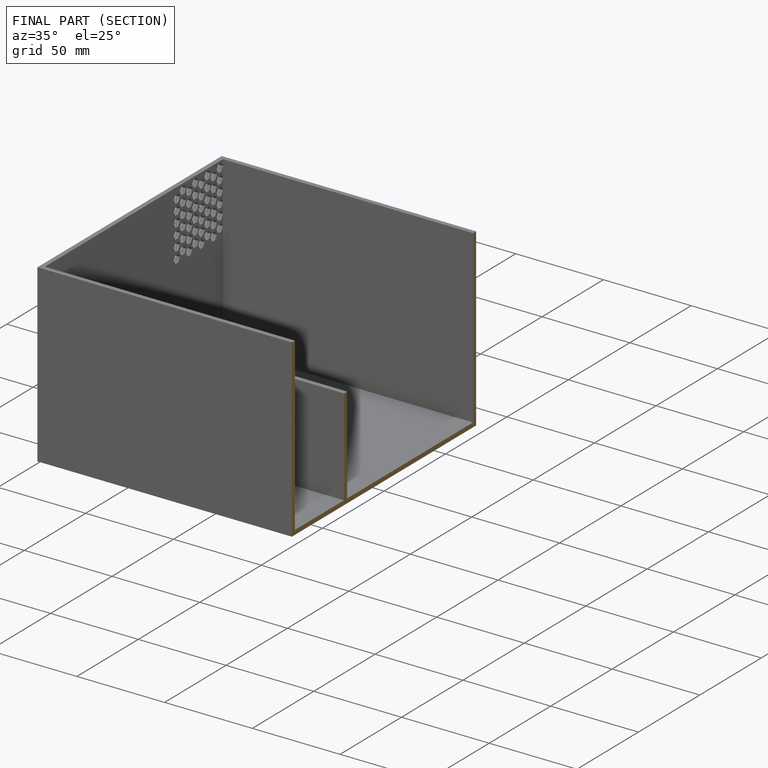
[diagram: finished part — half-section view (interior)]
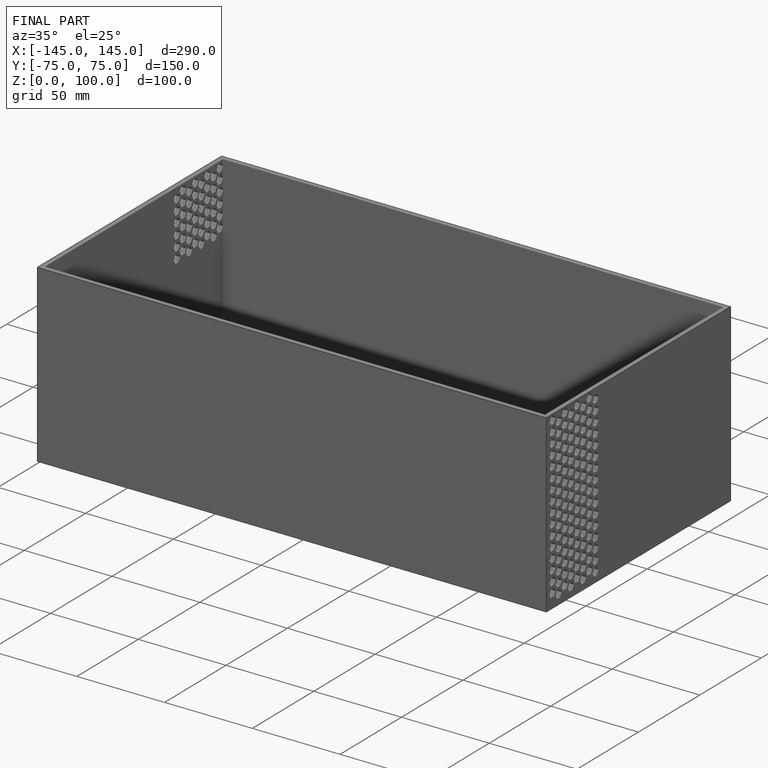
[diagram: finished part — iso view with bounding-box wireframe]
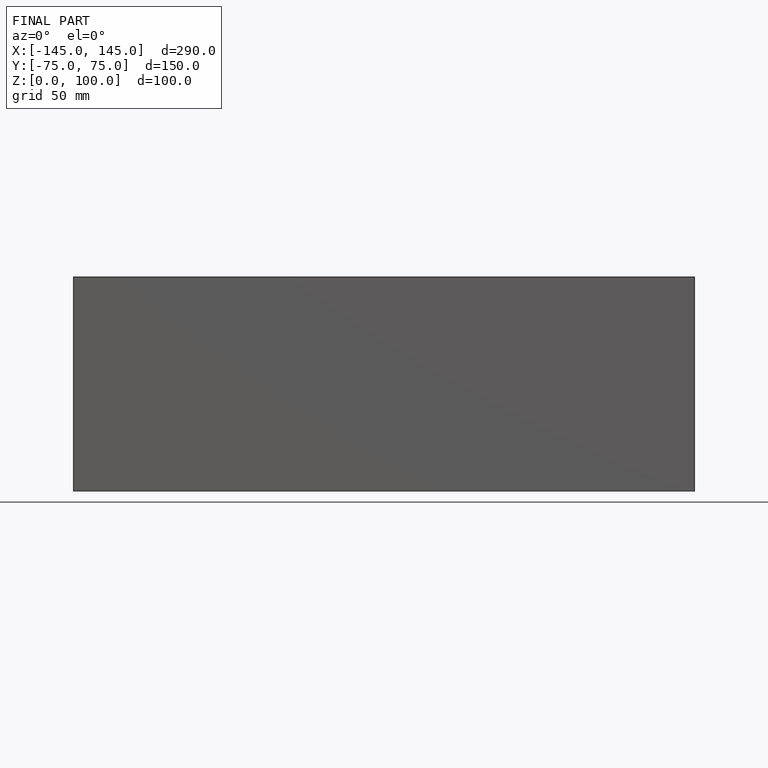
[diagram: finished part — front view with bounding-box wireframe]
